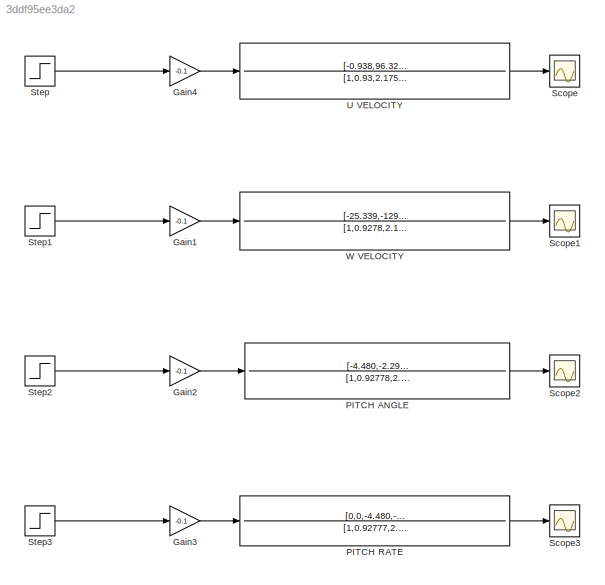
MODEL slx_3ddf95ee3da2
KIND model
CONFIG AbsTol = auto
CONFIG EnableMultiTasking = off
CONFIG FixedStep = auto
CONFIG MaxStep = auto
CONFIG MinStep = auto
CONFIG RelTol = 1e-3
CONFIG SampleTimeConstraint = Unconstrained
CONFIG Solver = VariableStepAuto
CONFIG SolverName = VariableStepAuto
CONFIG StartTime = 0.0
CONFIG StopTime = 500
BLOCK [Gain] Gain1
  Gain = -0.1
BLOCK [Gain] Gain2
  Gain = -0.1
BLOCK [Gain] Gain3
  Gain = -0.1
BLOCK [Gain] Gain4
  Gain = -0.1
BLOCK [TransferFcn] PITCH ANGLE
  Denominator = [1,0.92778,2.1756,0.148,0.04215]
  Numerator = [-4.480,-2.290,-0.167]
BLOCK [TransferFcn] PITCH RATE
  Denominator = [1,0.92777,2.1755,0.14798,0.04215]
  Numerator = [0,0,-4.480,-2.290,-0.167]
BLOCK [Scope] Scope
  Floating = off
  NumInputPorts = 1
  Ports = [1]
  ScopeSpecificationString = Simulink.scopes.TimeScopeBlockCfg('CurrentConfiguration', extmgr.ConfigurationSet(extmgr.Configuration('Core','General UI',true),extmgr.Configuration('Core','Source UI',true),extmgr.Configuration('Sources','WiredSimulink',true),extmgr.Configuration('Visuals','Time Domain',true,'SerializedDisplays',{struct('MinYLimReal','-256.13382','MaxYLimReal','28.45931','YLabelReal','','MinYLimMag',' 0.00000','...<+1352ch>
BLOCK [Scope] Scope1
  Floating = off
  NumInputPorts = 1
  Ports = [1]
  ScopeSpecificationString = Simulink.scopes.TimeScopeBlockCfg('CurrentConfiguration', extmgr.ConfigurationSet(extmgr.Configuration('Core','General UI',true),extmgr.Configuration('Core','Source UI',true),extmgr.Configuration('Sources','WiredSimulink',true,'DataLoggingVariableName','ScopeData1'),extmgr.Configuration('Visuals','Time Domain',true,'SerializedDisplays',{struct('MinYLimReal','-10.62835','MaxYLimReal','95.65516','YL...<+1385ch>
BLOCK [Scope] Scope2
  Floating = off
  NumInputPorts = 1
  Ports = [1]
  ScopeSpecificationString = Simulink.scopes.TimeScopeBlockCfg('CurrentConfiguration', extmgr.ConfigurationSet(extmgr.Configuration('Core','General UI',true),extmgr.Configuration('Core','Source UI',true),extmgr.Configuration('Sources','WiredSimulink',true,'DataLoggingVariableName','ScopeData2'),extmgr.Configuration('Visuals','Time Domain',true,'SerializedDisplays',{struct('MinYLimReal','-0.10734','MaxYLimReal','0.96608','YLab...<+1381ch>
BLOCK [Scope] Scope3
  Floating = off
  NumInputPorts = 1
  Ports = [1]
  ScopeSpecificationString = Simulink.scopes.TimeScopeBlockCfg('CurrentConfiguration', extmgr.ConfigurationSet(extmgr.Configuration('Core','General UI',true),extmgr.Configuration('Core','Source UI',true),extmgr.Configuration('Sources','WiredSimulink',true,'DataLoggingVariableName','ScopeData3'),extmgr.Configuration('Visuals','Time Domain',true,'SerializedDisplays',{struct('MinYLimReal','-0.10735','MaxYLimReal','0.96613','YLab...<+1379ch>
BLOCK [Step] Step
  SampleTime = 0
BLOCK [Step] Step1
  SampleTime = 0
BLOCK [Step] Step2
  SampleTime = 0
BLOCK [Step] Step3
  SampleTime = 0
BLOCK [TransferFcn] U VELOCITY
  Denominator = [1,0.93,2.175,0.148,0.04215]
  Numerator = [-0.938,96.326,63.897]
BLOCK [TransferFcn] W VELOCITY
  Denominator = [1,0.9278,2.18,0.148,0.04215]
  Numerator = [-25.339,-1296.734,-88.468,-27.586]
LINE Gain1:1 -> W VELOCITY:1
LINE Gain2:1 -> PITCH ANGLE:1
LINE Gain3:1 -> PITCH RATE:1
LINE Gain4:1 -> U VELOCITY:1
LINE PITCH ANGLE:1 -> Scope2:1
LINE PITCH RATE:1 -> Scope3:1
LINE Step1:1 -> Gain1:1
LINE Step2:1 -> Gain2:1
LINE Step3:1 -> Gain3:1
LINE Step:1 -> Gain4:1
LINE U VELOCITY:1 -> Scope:1
LINE W VELOCITY:1 -> Scope1:1
